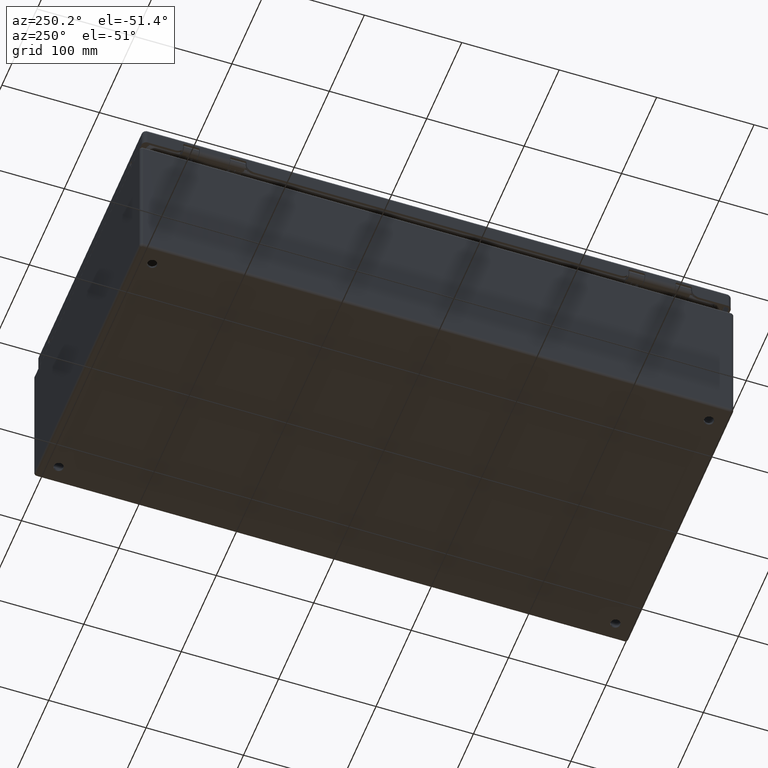
[diagram: clean part render]
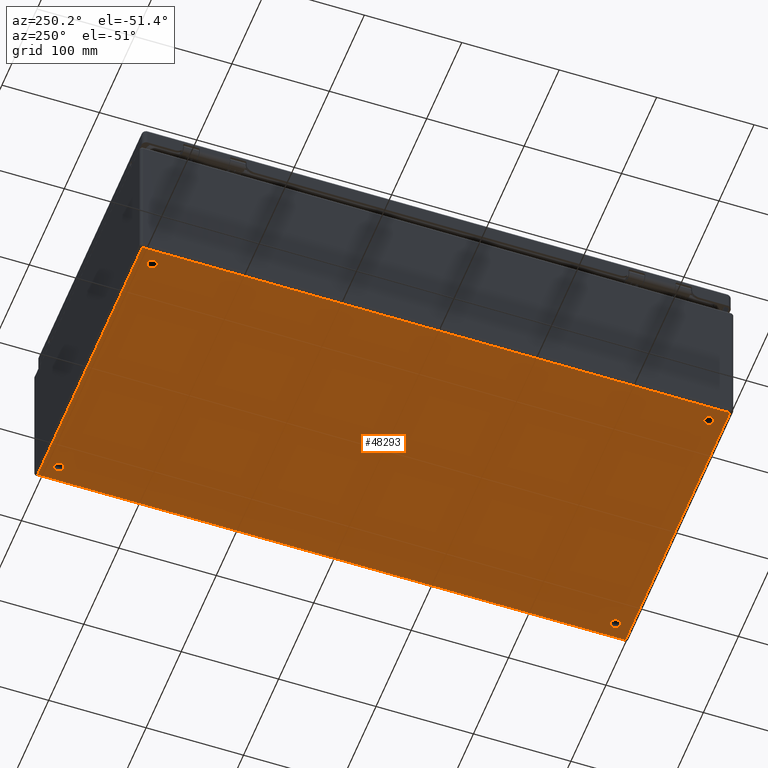
[diagram: same view with one face highlighted and labeled with its STEP entity id]
A machine part, auxiliary view. The second image highlights one B-rep face of the part: STEP entity #48293.
In plain terms, the highlighted planar face has unit normal (0, 0, 1).
Its self-contained STEP definition (entity closure, byte-faithful):
#3034=FACE_BOUND('',#15280,.T.);
#3035=FACE_BOUND('',#15281,.T.);
#3036=FACE_BOUND('',#15282,.T.);
#3037=FACE_BOUND('',#15283,.T.);
#4089=LINE('',#68956,#7914);
#4090=LINE('',#68957,#7915);
#4091=LINE('',#68958,#7916);
#4092=LINE('',#68959,#7917);
#7914=VECTOR('',#56496,0.393700787401575);
#7915=VECTOR('',#56497,0.393700787401575);
#7916=VECTOR('',#56498,0.393700787401575);
#7917=VECTOR('',#56499,0.393700787401575);
#12361=FACE_OUTER_BOUND('',#15279,.T.);
#15279=EDGE_LOOP('',(#32361,#32362,#32363,#32364));
#15280=EDGE_LOOP('',(#32365));
#15281=EDGE_LOOP('',(#32366));
#15282=EDGE_LOOP('',(#32367));
#15283=EDGE_LOOP('',(#32368));
#18340=CIRCLE('',#51922,0.195);
#18342=CIRCLE('',#51925,0.195);
#18344=CIRCLE('',#51928,0.195);
#18346=CIRCLE('',#51931,0.195);
#20025=VERTEX_POINT('',#68282);
#20027=VERTEX_POINT('',#68288);
#20029=VERTEX_POINT('',#68294);
#20031=VERTEX_POINT('',#68300);
#20105=VERTEX_POINT('',#68857);
#20114=VERTEX_POINT('',#68882);
#20118=VERTEX_POINT('',#68897);
#20123=VERTEX_POINT('',#68913);
#24691=EDGE_CURVE('',#20025,#20025,#18340,.T.);
#24694=EDGE_CURVE('',#20027,#20027,#18342,.T.);
#24697=EDGE_CURVE('',#20029,#20029,#18344,.T.);
#24700=EDGE_CURVE('',#20031,#20031,#18346,.T.);
#24865=EDGE_CURVE('',#20118,#20105,#4089,.T.);
#24866=EDGE_CURVE('',#20123,#20118,#4090,.T.);
#24867=EDGE_CURVE('',#20114,#20123,#4091,.T.);
#24868=EDGE_CURVE('',#20105,#20114,#4092,.T.);
#32361=ORIENTED_EDGE('',*,*,#24865,.F.);
#32362=ORIENTED_EDGE('',*,*,#24866,.F.);
#32363=ORIENTED_EDGE('',*,*,#24867,.F.);
#32364=ORIENTED_EDGE('',*,*,#24868,.F.);
#32365=ORIENTED_EDGE('',*,*,#24691,.T.);
#32366=ORIENTED_EDGE('',*,*,#24694,.T.);
#32367=ORIENTED_EDGE('',*,*,#24697,.T.);
#32368=ORIENTED_EDGE('',*,*,#24700,.T.);
#46896=PLANE('',#52079);
#48293=ADVANCED_FACE('',(#12361,#3034,#3035,#3036,#3037),#46896,.F.);
#51922=AXIS2_PLACEMENT_3D('',#68284,#56110,#56111);
#51925=AXIS2_PLACEMENT_3D('',#68290,#56117,#56118);
#51928=AXIS2_PLACEMENT_3D('',#68296,#56124,#56125);
#51931=AXIS2_PLACEMENT_3D('',#68302,#56131,#56132);
#52079=AXIS2_PLACEMENT_3D('',#68955,#56494,#56495);
#56110=DIRECTION('center_axis',(0.,0.,1.));
#56111=DIRECTION('ref_axis',(1.,0.,0.));
#56117=DIRECTION('center_axis',(0.,0.,1.));
#56118=DIRECTION('ref_axis',(1.,0.,0.));
#56124=DIRECTION('center_axis',(0.,0.,1.));
#56125=DIRECTION('ref_axis',(1.,0.,0.));
#56131=DIRECTION('center_axis',(0.,0.,1.));
#56132=DIRECTION('ref_axis',(1.,0.,0.));
#56494=DIRECTION('center_axis',(0.,0.,1.));
#56495=DIRECTION('ref_axis',(1.,0.,0.));
#56496=DIRECTION('',(1.,7.94323121312352E-20,0.));
#56497=DIRECTION('',(1.94576067924805E-20,-1.,0.));
#56498=DIRECTION('',(-1.,-7.94323121312352E-20,0.));
#56499=DIRECTION('',(-1.94576067924805E-20,1.,0.));
#68282=CARTESIAN_POINT('',(5.055,-11.25,0.));
#68284=CARTESIAN_POINT('Origin',(5.25,-11.25,0.));
#68288=CARTESIAN_POINT('',(5.055,11.25,0.));
#68290=CARTESIAN_POINT('Origin',(5.25,11.25,0.));
#68294=CARTESIAN_POINT('',(-5.445,11.25,0.));
#68296=CARTESIAN_POINT('Origin',(-5.25,11.25,0.));
#68300=CARTESIAN_POINT('',(-5.445,-11.25,0.));
#68302=CARTESIAN_POINT('Origin',(-5.25,-11.25,0.));
#68857=CARTESIAN_POINT('',(5.879,-11.879,0.));
#68882=CARTESIAN_POINT('',(5.879,11.879,0.));
#68897=CARTESIAN_POINT('',(-5.879,-11.879,0.));
#68913=CARTESIAN_POINT('',(-5.879,11.879,0.));
#68955=CARTESIAN_POINT('Origin',(0.,0.,0.));
#68956=CARTESIAN_POINT('',(-1.74371289031493E-16,-11.879,0.));
#68957=CARTESIAN_POINT('',(-5.879,-5.60184499555517E-20,0.));
#68958=CARTESIAN_POINT('',(1.74371289031493E-16,11.879,0.));
#68959=CARTESIAN_POINT('',(5.879,5.60184499555517E-20,0.));